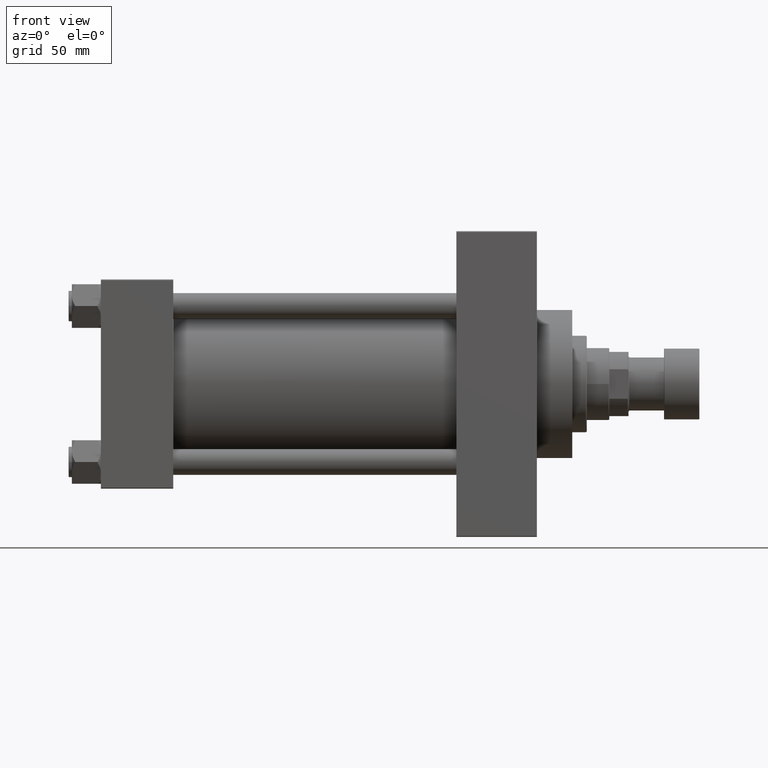
[diagram: clean part render]
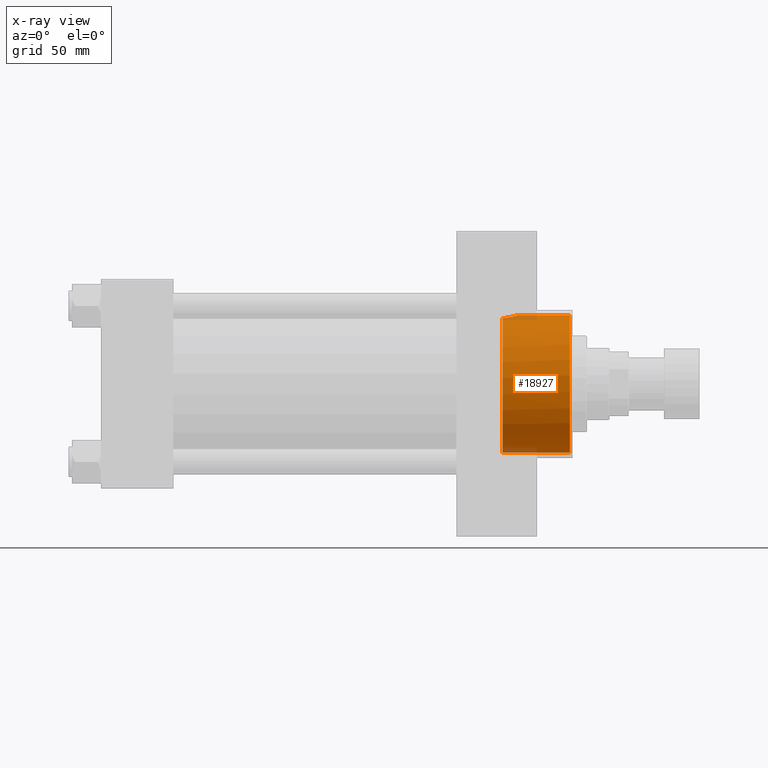
[diagram: x-ray — body ghosted, one internal face saturated and labeled with its STEP entity id]
A machine part, front view, then the same camera in x-ray: the body is ghosted and one INTERNAL B-rep face — a face not visible from any outside direction — is saturated and labeled: STEP entity #18927.
In plain terms, the highlighted cylindrical surface (partial cylindrical patch) has radius 42.75 mm, axis along (1, 0, 0).
Its self-contained STEP definition (entity closure, byte-faithful):
#1050 = CARTESIAN_POINT ( 'NONE',  ( 257.8678695714943387, -5.834913689629344979, 42.35109966501105561 ) ) ;
#1334 = VECTOR ( 'NONE', #46093, 1000.000000000000000 ) ;
#1543 = CARTESIAN_POINT ( 'NONE',  ( 258.2993960643596552, -4.860054019011680992, 42.47412520213218556 ) ) ;
#5089 = VERTEX_POINT ( 'NONE', #45932 ) ;
#5738 = CARTESIAN_POINT ( 'NONE',  ( 249.7399999999999807, 0.000000000000000000, -42.75000000000000000 ) ) ;
#6025 = ORIENTED_EDGE ( 'NONE', *, *, #42990, .F. ) ;
#8368 = CARTESIAN_POINT ( 'NONE',  ( 257.0015928053664425, -7.364010740346977002, 42.11487085516268536 ) ) ;
#8601 = EDGE_CURVE ( 'NONE', #22806, #23927, #11101, .T. ) ;
#8851 = CARTESIAN_POINT ( 'NONE',  ( 254.6754924569602565, -9.999825575006527245, 41.56700312386077201 ) ) ;
#9335 = CARTESIAN_POINT ( 'NONE',  ( 258.0198534454123092, -5.515287097378166692, 42.39402133541479856 ) ) ;
#9985 = DIRECTION ( 'NONE',  ( 1.000000000000000000, 0.000000000000000000, 0.000000000000000000 ) ) ;
#11101 = CIRCLE ( 'NONE', #19700, 42.75000000000000000 ) ;
#11362 = AXIS2_PLACEMENT_3D ( 'NONE', #31813, #14179, #40618 ) ;
#12610 = DIRECTION ( 'NONE',  ( 1.000000000000000000, 0.000000000000000000, 0.000000000000000000 ) ) ;
#12743 = CARTESIAN_POINT ( 'NONE',  ( 250.4263400167579618, -12.47749807280257883, 40.88911195506443619 ) ) ;
#14179 = DIRECTION ( 'NONE',  ( 1.000000000000000000, -0.000000000000000000, -0.000000000000000000 ) ) ;
#15763 = CARTESIAN_POINT ( 'NONE',  ( 249.7399999999999807, 0.000000000000000000, -42.75000000000000000 ) ) ;
#16162 = CARTESIAN_POINT ( 'NONE',  ( 291.5000000000000000, 0.000000000000000000, -42.75000000000000000 ) ) ;
#16166 = CARTESIAN_POINT ( 'NONE',  ( 254.1351602650894677, -10.44419664956251381, 41.45664902860857381 ) ) ;
#16276 = CARTESIAN_POINT ( 'NONE',  ( 249.7399999999999807, 0.000000000000000000, 0.000000000000000000 ) ) ;
#16409 = CARTESIAN_POINT ( 'NONE',  ( 259.1474619350561284, -1.428652546488349495, 42.72761509841831185 ) ) ;
#16647 = CARTESIAN_POINT ( 'NONE',  ( 258.7629584476919149, -3.518170577613233707, 42.61034067485235965 ) ) ;
#16892 = CYLINDRICAL_SURFACE ( 'NONE', #11362, 42.75000000000000000 ) ;
#18927 = ADVANCED_FACE ( 'NONE', ( #35497 ), #16892, .F. ) ;
#19541 = LINE ( 'NONE', #27358, #46527 ) ;
#19594 = CARTESIAN_POINT ( 'NONE',  ( 259.2200000000000273, -0.3557163794469079265, 42.75000000000001421 ) ) ;
#19700 = AXIS2_PLACEMENT_3D ( 'NONE', #32213, #9985, #47128 ) ;
#19865 = EDGE_CURVE ( 'NONE', #42528, #22806, #19541, .T. ) ;
#20265 = DIRECTION ( 'NONE',  ( 1.000000000000000000, -0.000000000000000000, -0.000000000000000000 ) ) ;
#20919 = ORIENTED_EDGE ( 'NONE', *, *, #23444, .F. ) ;
#22806 = VERTEX_POINT ( 'NONE', #34319 ) ;
#23444 = EDGE_CURVE ( 'NONE', #5089, #41948, #25562, .T. ) ;
#23727 = CARTESIAN_POINT ( 'NONE',  ( 251.0881855045064981, -12.22213168823642171, 40.96686556097023413 ) ) ;
#23927 = VERTEX_POINT ( 'NONE', #16162 ) ;
#24772 = EDGE_CURVE ( 'NONE', #42528, #5089, #25392, .T. ) ;
#25392 = B_SPLINE_CURVE_WITH_KNOTS ( 'NONE', 3,
 ( #27888, #19594, #35009, #16409, #35248, #27409, #16647, #42350, #1543, #9335, #1050, #30835, #8368, #38449, #31802, #8851, #16166, #38214, #45767, #23727, #12743, #46250 ),
 .UNSPECIFIED., .F., .F.,
 ( 4, 2, 2, 2, 2, 2, 2, 2, 2, 2, 4 ),
 ( 0.01702171439019717000, 0.01808348912762097749, 0.01914526386504478497, 0.02126881333989239647, 0.02233058807731623172, 0.02339236281474006349, 0.02551591228958781030, 0.02763946176443555711, 0.02976301123928330045, 0.03188656071413104726, 0.03401011018897879407 ),
 .UNSPECIFIED. ) ;
#25562 = CIRCLE ( 'NONE', #31050, 42.75000000000000000 ) ;
#25629 = ORIENTED_EDGE ( 'NONE', *, *, #19865, .T. ) ;
#27358 = CARTESIAN_POINT ( 'NONE',  ( 249.7399999999999807, 5.235365066354935472E-15, 42.75000000000000000 ) ) ;
#27409 = CARTESIAN_POINT ( 'NONE',  ( 258.9325276923766523, -2.832175481623198543, 42.66183901135580925 ) ) ;
#27888 = CARTESIAN_POINT ( 'NONE',  ( 259.2200000000000273, 5.235365066362919533E-15, 42.75000000000000000 ) ) ;
#28873 = CARTESIAN_POINT ( 'NONE',  ( 259.2200000000000273, 5.235365066362919533E-15, 42.75000000000000000 ) ) ;
#30540 = ORIENTED_EDGE ( 'NONE', *, *, #24772, .F. ) ;
#30835 = CARTESIAN_POINT ( 'NONE',  ( 257.3763861193419302, -6.770732795594980757, 42.21512903942318218 ) ) ;
#31050 = AXIS2_PLACEMENT_3D ( 'NONE', #16276, #12610, #31192 ) ;
#31192 = DIRECTION ( 'NONE',  ( 0.000000000000000000, 0.000000000000000000, -1.000000000000000000 ) ) ;
#31802 = CARTESIAN_POINT ( 'NONE',  ( 255.6852196200359799, -9.025364359016275984, 41.78941323369599559 ) ) ;
#31813 = CARTESIAN_POINT ( 'NONE',  ( 249.7399999999999807, 0.000000000000000000, 0.000000000000000000 ) ) ;
#32213 = CARTESIAN_POINT ( 'NONE',  ( 291.5000000000000000, 0.000000000000000000, 0.000000000000000000 ) ) ;
#32966 = EDGE_LOOP ( 'NONE', ( #30540, #25629, #47580, #6025, #20919 ) ) ;
#34319 = CARTESIAN_POINT ( 'NONE',  ( 291.5000000000000000, 5.235365066354935472E-15, 42.75000000000000000 ) ) ;
#35009 = CARTESIAN_POINT ( 'NONE',  ( 259.2055487969409455, -0.7143419376948718647, 42.74552439370961565 ) ) ;
#35248 = CARTESIAN_POINT ( 'NONE',  ( 259.1041229325396671, -1.782171368608852724, 42.71427362908443115 ) ) ;
#35497 = FACE_OUTER_BOUND ( 'NONE', #32966, .T. ) ;
#38214 = CARTESIAN_POINT ( 'NONE',  ( 252.9822741085591247, -11.24766306689394035, 41.24590971077732604 ) ) ;
#38449 = CARTESIAN_POINT ( 'NONE',  ( 256.1575723231069901, -8.490431257591517067, 41.90230994099357531 ) ) ;
#38773 = LINE ( 'NONE', #5738, #1334 ) ;
#40618 = DIRECTION ( 'NONE',  ( 0.000000000000000000, 0.000000000000000000, -1.000000000000000000 ) ) ;
#41948 = VERTEX_POINT ( 'NONE', #15763 ) ;
#42350 = CARTESIAN_POINT ( 'NONE',  ( 258.4260137807291926, -4.526382623994729570, 42.51103856060493058 ) ) ;
#42528 = VERTEX_POINT ( 'NONE', #28873 ) ;
#42990 = EDGE_CURVE ( 'NONE', #41948, #23927, #38773, .T. ) ;
#45767 = CARTESIAN_POINT ( 'NONE',  ( 252.3650373963749587, -11.60846388096252113, 41.14496498017213355 ) ) ;
#45932 = CARTESIAN_POINT ( 'NONE',  ( 249.7399999999999807, -12.67993690836037324, 40.82623788692757216 ) ) ;
#46093 = DIRECTION ( 'NONE',  ( 1.000000000000000000, -0.000000000000000000, -0.000000000000000000 ) ) ;
#46250 = CARTESIAN_POINT ( 'NONE',  ( 249.7399999999999807, -12.67993690836037324, 40.82623788692757216 ) ) ;
#46527 = VECTOR ( 'NONE', #20265, 1000.000000000000000 ) ;
#47128 = DIRECTION ( 'NONE',  ( 0.000000000000000000, 0.000000000000000000, -1.000000000000000000 ) ) ;
#47580 = ORIENTED_EDGE ( 'NONE', *, *, #8601, .T. ) ;